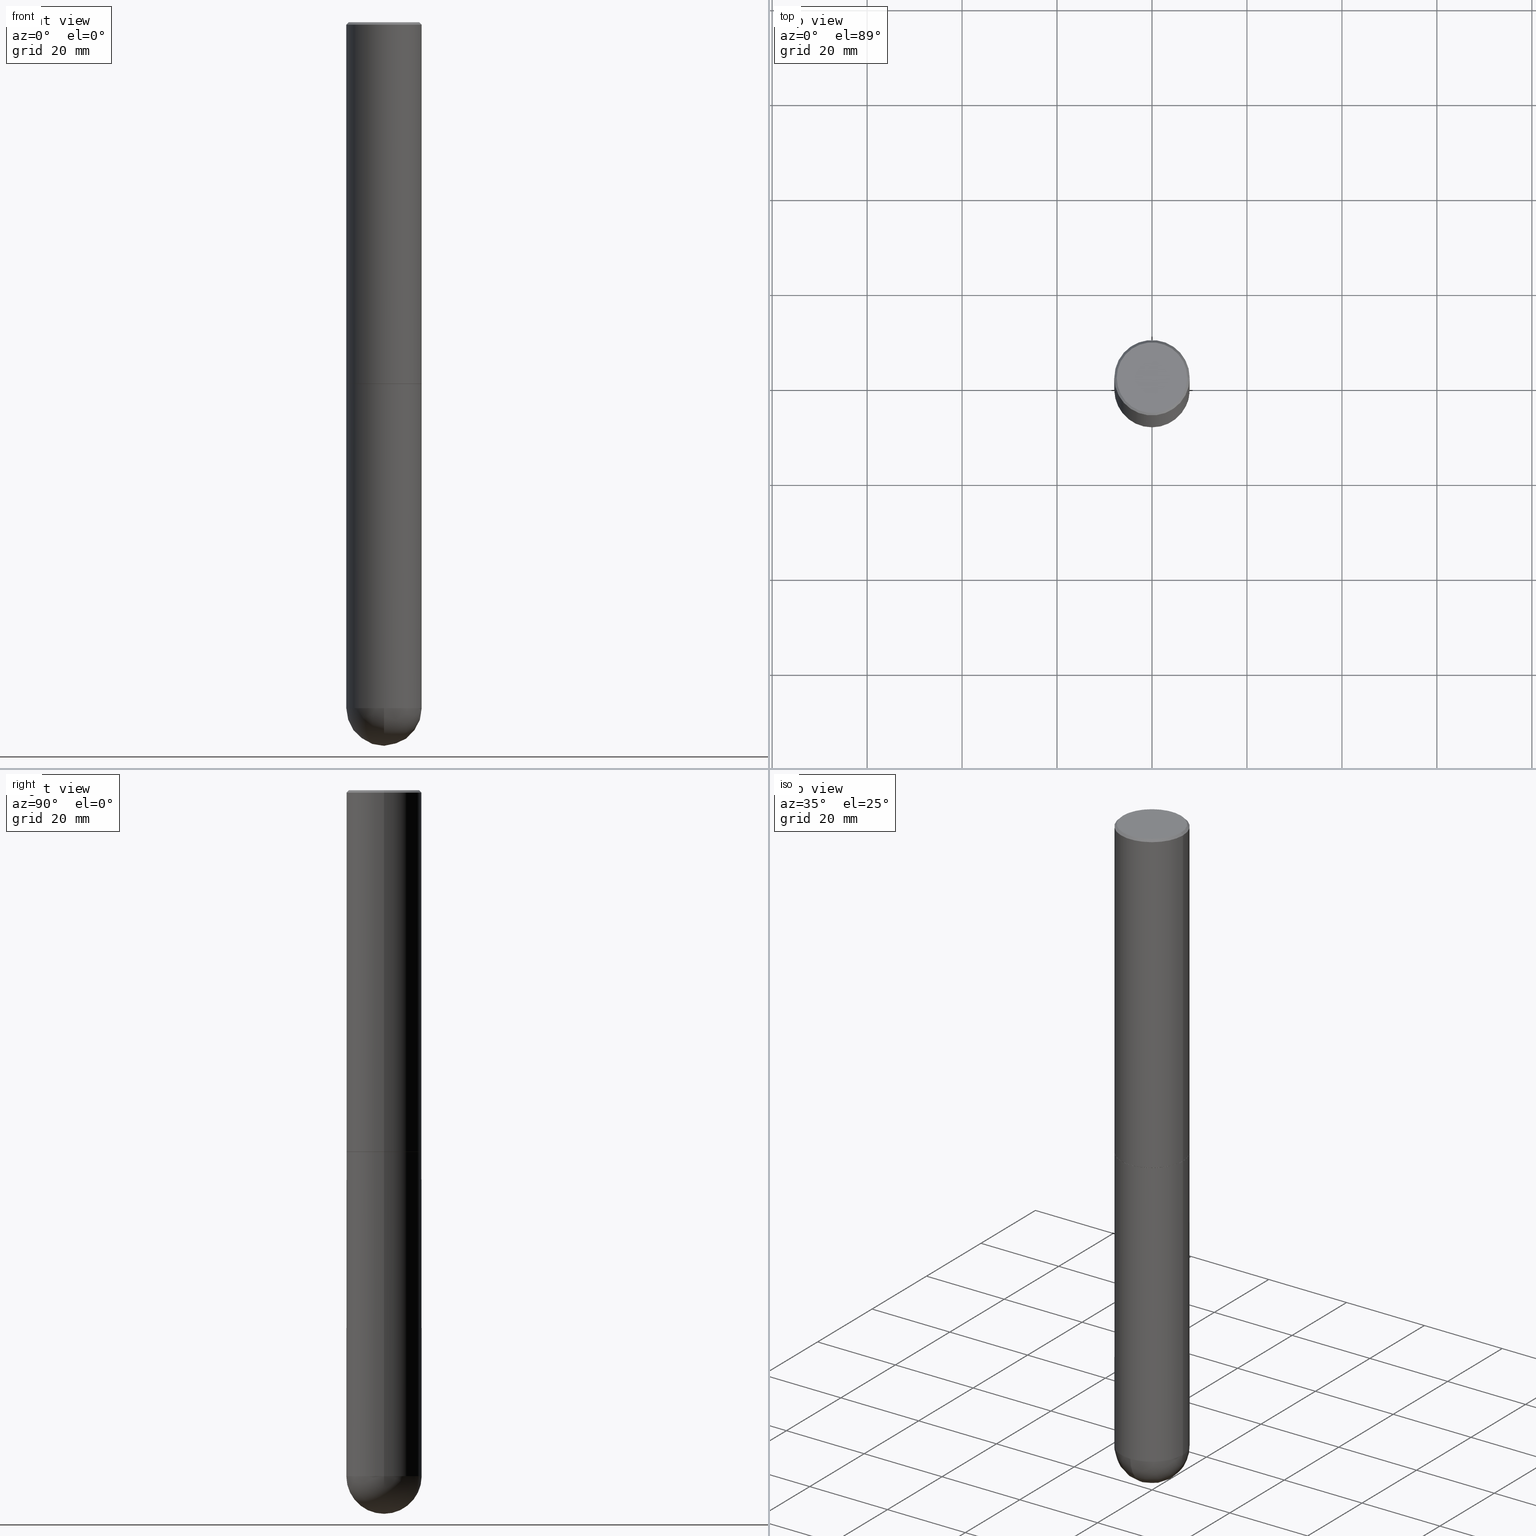
[diagram: canonical four-view strip — front | top / right | iso, engineering-drawing reading convention]
A machine part, canonical four-view strip (front | top / right | iso — engineering-drawing reading convention). The complete STEP part file that produces these views, byte-faithful:
ISO-10303-21;
HEADER;
FILE_DESCRIPTION (( 'STEP AP203' ),
    '1' );
FILE_NAME ('70463.STEP',
    '2024-04-10T12:33:41',
    ( '' ),
    ( '' ),
    'SwSTEP 2.0',
    'SolidWorks 2023',
    '' );
FILE_SCHEMA (( 'CONFIG_CONTROL_DESIGN' ));
ENDSEC;

DATA;
#1 = COORDINATED_UNIVERSAL_TIME_OFFSET ( 5, 0, .BEHIND. ) ;
#2 = CC_DESIGN_APPROVAL ( #224, ( #221 ) ) ;
#3 = AXIS2_PLACEMENT_3D ( 'NONE', #399, #255, #392 ) ;
#4 = AXIS2_PLACEMENT_3D ( 'NONE', #83, #47, #363 ) ;
#5 = CARTESIAN_POINT ( 'NONE',  ( -0.3125000000000003331, -3.049945031733409719E-15, -2.999000000000000554 ) ) ;
#6 = CARTESIAN_POINT ( 'NONE',  ( 0.000000000000000000, 0.000000000000000000, 0.000000000000000000 ) ) ;
#7 = LINE ( 'NONE', #339, #149 ) ;
#8 = EDGE_CURVE ( 'NONE', #54, #75, #279, .T. ) ;
#9 = PRODUCT_DEFINITION_SHAPE ( 'NONE', 'NONE',  #245 ) ;
#10 = APPROVAL_PERSON_ORGANIZATION ( #36, #199, #187 ) ;
#11 = CIRCLE ( 'NONE', #314, 0.3124999999999994449 ) ;
#12 = CARTESIAN_POINT ( 'NONE',  ( 0.000000000000000000, 0.000000000000000000, 0.000000000000000000 ) ) ;
#13 = CARTESIAN_POINT ( 'NONE',  ( -2.220446049250173452E-15, -0.3125000000000198175, -5.687500000000000888 ) ) ;
#14 = CC_DESIGN_PERSON_AND_ORGANIZATION_ASSIGNMENT ( #69, #192, ( #221 ) ) ;
#15 = CARTESIAN_POINT ( 'NONE',  ( 0.3125000000000000000, -1.265661985330639628E-14, -3.000000000000000444 ) ) ;
#16 = CONICAL_SURFACE ( 'NONE', #312, 0.3114999999999999991, 0.7853981633979947308 ) ;
#17 = ORIENTED_EDGE ( 'NONE', *, *, #19, .T. ) ;
#18 = AXIS2_PLACEMENT_3D ( 'NONE', #271, #124, #269 ) ;
#19 = EDGE_CURVE ( 'NONE', #21, #48, #32, .T. ) ;
#20 = ORIENTED_EDGE ( 'NONE', *, *, #229, .T. ) ;
#21 = VERTEX_POINT ( 'NONE', #134 ) ;
#22 = LINE ( 'NONE', #58, #127 ) ;
#23 = EDGE_LOOP ( 'NONE', ( #206, #404, #262, #164, #143 ) ) ;
#24 = DIRECTION ( 'NONE',  ( -1.000000000000000000, 6.982962677686265922E-15, -4.883557194083112901E-29 ) ) ;
#25 = EDGE_LOOP ( 'NONE', ( #27, #77, #203, #135 ) ) ;
#26 = DIMENSIONAL_EXPONENTS ( 1.000000000000000000, 0.000000000000000000, 0.000000000000000000, 0.000000000000000000, 0.000000000000000000, 0.000000000000000000, 0.000000000000000000 ) ;
#27 = ORIENTED_EDGE ( 'NONE', *, *, #29, .T. ) ;
#28 = FACE_OUTER_BOUND ( 'NONE', #25, .T. ) ;
#29 = EDGE_CURVE ( 'NONE', #394, #368, #109, .T. ) ;
#30 =( LENGTH_UNIT ( ) NAMED_UNIT ( * ) SI_UNIT ( $, .METRE. ) );
#31 = CYLINDRICAL_SURFACE ( 'NONE', #253, 0.3125000000000000000 ) ;
#32 = CIRCLE ( 'NONE', #286, 0.3124999999999994449 ) ;
#33 = EDGE_CURVE ( 'NONE', #368, #394, #391, .T. ) ;
#34 = EDGE_LOOP ( 'NONE', ( #171, #17, #173, #116 ) ) ;
#35 = CARTESIAN_POINT ( 'NONE',  ( -0.3114999999999999991, -8.255804940288501090E-15, -2.999999999999999556 ) ) ;
#36 = PERSON_AND_ORGANIZATION ( #212, #376 ) ;
#37 = MECHANICAL_CONTEXT ( 'NONE', #390, 'mechanical' ) ;
#38 = AXIS2_PLACEMENT_3D ( 'NONE', #331, #370, #342 ) ;
#39 = AXIS2_PLACEMENT_3D ( 'NONE', #346, #67, #208 ) ;
#40 = LOCAL_TIME ( 8, 33, 41.00000000000000000, #161 ) ;
#41 = CYLINDRICAL_SURFACE ( 'NONE', #57, 0.3125000000000000000 ) ;
#42 = DIRECTION ( 'NONE',  ( -2.445468806185136877E-29, 3.491481338843145188E-15, 1.000000000000000000 ) ) ;
#43 = EDGE_CURVE ( 'NONE', #368, #139, #395, .T. ) ;
#44 = PERSON_AND_ORGANIZATION_ROLE ( 'classification_officer' ) ;
#45 = CC_DESIGN_PERSON_AND_ORGANIZATION_ASSIGNMENT ( #277, #317, ( #245 ) ) ;
#46 = CONICAL_SURFACE ( 'NONE', #50, 0.3125000000000000000, 0.7853981633974471688 ) ;
#47 = DIRECTION ( 'NONE',  ( -2.445468806185136597E-29, 3.491481338843145583E-15, 1.000000000000000000 ) ) ;
#48 = VERTEX_POINT ( 'NONE', #13 ) ;
#49 = SECURITY_CLASSIFICATION ( '', '', #283 ) ;
#50 = AXIS2_PLACEMENT_3D ( 'NONE', #409, #309, #118 ) ;
#51 = VERTEX_POINT ( 'NONE', #128 ) ;
#52 = DIRECTION ( 'NONE',  ( -7.105427357601000281E-15, -1.000000000000000000, 0.000000000000000000 ) ) ;
#53 = CARTESIAN_POINT ( 'NONE',  ( 7.333960949749226429E-29, -1.047095253519059492E-14, -2.999000000000000554 ) ) ;
#54 = VERTEX_POINT ( 'NONE', #231 ) ;
#55 = AXIS2_PLACEMENT_3D ( 'NONE', #330, #101, #294 ) ;
#56 = COORDINATED_UNIVERSAL_TIME_OFFSET ( 5, 0, .BEHIND. ) ;
#57 = AXIS2_PLACEMENT_3D ( 'NONE', #247, #350, #214 ) ;
#58 = CARTESIAN_POINT ( 'NONE',  ( -0.3125000000000000000, 2.220446049250313081E-15, -1.537167215704658232E-29 ) ) ;
#59 = CYLINDRICAL_SURFACE ( 'NONE', #162, 0.3125000000000001665 ) ;
#60 = CARTESIAN_POINT ( 'NONE',  ( 0.3125000000000000000, -2.213735251080466911E-15, -0.02000000000000006981 ) ) ;
#61 = EDGE_CURVE ( 'NONE', #359, #48, #225, .T. ) ;
#62 = CARTESIAN_POINT ( 'NONE',  ( 2.042516583223233723E-15, 0.2925000000000001488, -1.104494285168578534E-15 ) ) ;
#63 = CALENDAR_DATE ( 2024, 10, 4 ) ;
#64 = APPROVAL_PERSON_ORGANIZATION ( #94, #224, #89 ) ;
#65 = LENGTH_MEASURE_WITH_UNIT ( LENGTH_MEASURE( 0.02539999999999999897 ), #30 );
#66 = EDGE_CURVE ( 'NONE', #51, #139, #243, .T. ) ;
#67 = DIRECTION ( 'NONE',  ( 2.438088387897960049E-29, -3.491481338843145188E-15, -1.000000000000000000 ) ) ;
#68 = AXIS2_PLACEMENT_3D ( 'NONE', #6, #123, #154 ) ;
#69 = PERSON_AND_ORGANIZATION ( #212, #376 ) ;
#70 = EDGE_CURVE ( 'NONE', #51, #372, #357, .T. ) ;
#71 = AXIS2_PLACEMENT_3D ( 'NONE', #266, #293, #241 ) ;
#72 = ORIENTED_EDGE ( 'NONE', *, *, #332, .F. ) ;
#73 = ORIENTED_EDGE ( 'NONE', *, *, #33, .T. ) ;
#74 = DIRECTION ( 'NONE',  ( -2.445468806185136597E-29, 3.491481338843145583E-15, 1.000000000000000000 ) ) ;
#75 = VERTEX_POINT ( 'NONE', #15 ) ;
#76 = AXIS2_PLACEMENT_3D ( 'NONE', #177, #79, #364 ) ;
#77 = ORIENTED_EDGE ( 'NONE', *, *, #43, .T. ) ;
#78 = CIRCLE ( 'NONE', #410, 0.3125000000000000000 ) ;
#79 = DIRECTION ( 'NONE',  ( -2.445468806185136597E-29, 3.491481338843145583E-15, 1.000000000000000000 ) ) ;
#80 = DIRECTION ( 'NONE',  ( -2.445468806185136597E-29, 3.491481338843145583E-15, 1.000000000000000000 ) ) ;
#81 = DIRECTION ( 'NONE',  ( 1.000000000000000000, -6.982962677686266711E-15, 4.876176775795935232E-29 ) ) ;
#82 = ADVANCED_FACE ( 'NONE', ( #131 ), #31, .T. ) ;
#83 = CARTESIAN_POINT ( 'NONE',  ( 7.336406418555408669E-29, -1.047444401652943478E-14, -2.999999999999999556 ) ) ;
#84 = EDGE_LOOP ( 'NONE', ( #400, #302 ) ) ;
#85 = AXIS2_PLACEMENT_3D ( 'NONE', #198, #24, #263 ) ;
#86 = CC_DESIGN_APPROVAL ( #100, ( #49 ) ) ;
#87 = DIRECTION ( 'NONE',  ( -2.445468806185136597E-29, 3.491481338843145583E-15, 1.000000000000000000 ) ) ;
#88 = PRODUCT_RELATED_PRODUCT_CATEGORY ( 'detail', '', ( #389 ) ) ;
#89 = APPROVAL_ROLE ( '' ) ;
#90 = DIRECTION ( 'NONE',  ( 1.000000000000000000, -6.982962677686269077E-15, 0.000000000000000000 ) ) ;
#91 = PERSON_AND_ORGANIZATION ( #212, #376 ) ;
#92 =( CONVERSION_BASED_UNIT ( 'INCH', #65 ) LENGTH_UNIT ( ) NAMED_UNIT ( #26 ) );
#93 = ADVANCED_FACE ( 'NONE', ( #281 ), #282, .F. ) ;
#94 = PERSON_AND_ORGANIZATION ( #212, #376 ) ;
#95 = FACE_OUTER_BOUND ( 'NONE', #84, .T. ) ;
#96 = APPROVAL_DATE_TIME ( #387, #224 ) ;
#97 = FACE_OUTER_BOUND ( 'NONE', #226, .T. ) ;
#98 = LOCAL_TIME ( 8, 33, 41.00000000000000000, #200 ) ;
#99 = AXIS2_PLACEMENT_3D ( 'NONE', #62, #218, #320 ) ;
#100 = APPROVAL ( #307, 'UNSPECIFIED' ) ;
#101 = DIRECTION ( 'NONE',  ( -2.445468806185136597E-29, 3.491481338843145583E-15, 1.000000000000000000 ) ) ;
#102 = DIRECTION ( 'NONE',  ( 1.000000000000000000, -6.982962677686265922E-15, 0.000000000000000000 ) ) ;
#103 = ORIENTED_EDGE ( 'NONE', *, *, #19, .F. ) ;
#104 = ORIENTED_EDGE ( 'NONE', *, *, #397, .F. ) ;
#105 = CARTESIAN_POINT ( 'NONE',  ( -0.2925000000000001488, 2.077431396611664583E-15, -1.664719871139304458E-16 ) ) ;
#106 = DATE_AND_TIME ( #169, #98 ) ;
#107 = DIRECTION ( 'NONE',  ( -1.000000000000000000, 7.105427357601001070E-15, -4.926315508542082329E-29 ) ) ;
#108 = ORIENTED_EDGE ( 'NONE', *, *, #322, .F. ) ;
#109 = CIRCLE ( 'NONE', #4, 0.3114999999999999991 ) ;
#110 = ORIENTED_EDGE ( 'NONE', *, *, #377, .T. ) ;
#111 = ORIENTED_EDGE ( 'NONE', *, *, #358, .F. ) ;
#112 = CARTESIAN_POINT ( 'NONE',  ( 1.390860383517796888E-28, -1.985780011467040063E-14, -5.687500000000001776 ) ) ;
#113 = LINE ( 'NONE', #240, #323 ) ;
#114 = CARTESIAN_POINT ( 'NONE',  ( 0.3125000000000000000, -1.734829790237687605E-14, -5.687500000000001776 ) ) ;
#115 = DIRECTION ( 'NONE',  ( 6.982962677686265922E-15, 1.000000000000000000, -3.496765431890262836E-15 ) ) ;
#116 = ORIENTED_EDGE ( 'NONE', *, *, #180, .F. ) ;
#117 = DIRECTION ( 'NONE',  ( -2.445468806185136597E-29, 3.491481338843145583E-15, 1.000000000000000000 ) ) ;
#118 = DIRECTION ( 'NONE',  ( -1.000000000000000000, 6.982962677686266711E-15, 0.000000000000000000 ) ) ;
#119 = MANIFOLD_SOLID_BREP ( 'Body-Move/Copy2[2]', #340 ) ;
#120 = EDGE_LOOP ( 'NONE', ( #265, #264, #325, #152 ) ) ;
#121 = CALENDAR_DATE ( 2024, 10, 4 ) ;
#122 = MANIFOLD_SOLID_BREP ( 'Body-Move/Copy2[1]', #176 ) ;
#123 = DIRECTION ( 'NONE',  ( 0.000000000000000000, 0.000000000000000000, 1.000000000000000000 ) ) ;
#124 = DIRECTION ( 'NONE',  ( -2.445468806185136597E-29, 3.491481338843145583E-15, 1.000000000000000000 ) ) ;
#125 = CARTESIAN_POINT ( 'NONE',  ( 1.390860383517796888E-28, -1.985780011467040063E-14, -5.687500000000001776 ) ) ;
#126 = EDGE_CURVE ( 'NONE', #394, #51, #7, .T. ) ;
#127 = VECTOR ( 'NONE', #168, 39.37007874015748143 ) ;
#128 = CARTESIAN_POINT ( 'NONE',  ( 0.3125000000000003331, -1.265312837196755485E-14, -2.999000000000000554 ) ) ;
#129 = ADVANCED_FACE ( 'NONE', ( #95 ), #385, .F. ) ;
#130 = CC_DESIGN_SECURITY_CLASSIFICATION ( #49, ( #221 ) ) ;
#131 = FACE_OUTER_BOUND ( 'NONE', #140, .T. ) ;
#132 = AXIS2_PLACEMENT_3D ( 'NONE', #297, #201, #102 ) ;
#133 = ORIENTED_EDGE ( 'NONE', *, *, #322, .T. ) ;
#134 = CARTESIAN_POINT ( 'NONE',  ( 1.435505503246536289E-28, -2.140393529496224958E-14, -6.000000000000000888 ) ) ;
#135 = ORIENTED_EDGE ( 'NONE', *, *, #126, .F. ) ;
#136 = PLANE ( 'NONE',  #38 ) ;
#137 = EDGE_CURVE ( 'NONE', #372, #334, #223, .T. ) ;
#138 = APPROVAL_DATE_TIME ( #106, #100 ) ;
#139 = VERTEX_POINT ( 'NONE', #5 ) ;
#140 = EDGE_LOOP ( 'NONE', ( #401, #291, #133, #238, #369 ) ) ;
#141 = DIRECTION ( 'NONE',  ( 1.000000000000000000, -6.982962677686268288E-15, 0.000000000000000000 ) ) ;
#142 = SHAPE_DEFINITION_REPRESENTATION ( #9, #386 ) ;
#143 = ORIENTED_EDGE ( 'NONE', *, *, #170, .T. ) ;
#144 = DIRECTION ( 'NONE',  ( -2.445468806185136597E-29, 3.491481338843145583E-15, 1.000000000000000000 ) ) ;
#145 = APPROVAL_ROLE ( '' ) ;
#146 = DIRECTION ( 'NONE',  ( 1.000000000000000000, -6.982962677686262766E-15, 0.000000000000000000 ) ) ;
#147 = FACE_OUTER_BOUND ( 'NONE', #367, .T. ) ;
#148 = DIRECTION ( 'NONE',  ( -2.445468806185136877E-29, 3.491481338843145188E-15, 1.000000000000000000 ) ) ;
#149 = VECTOR ( 'NONE', #189, 39.37007874015748143 ) ;
#150 = EDGE_LOOP ( 'NONE', ( #196, #327, #276, #166 ) ) ;
#151 = CARTESIAN_POINT ( 'NONE',  ( -0.3125000000000000000, 2.112346210000095443E-15, -0.02000000000000006981 ) ) ;
#152 = ORIENTED_EDGE ( 'NONE', *, *, #70, .F. ) ;
#153 = EDGE_CURVE ( 'NONE', #360, #75, #353, .T. ) ;
#154 = DIRECTION ( 'NONE',  ( 1.000000000000000000, 0.000000000000000000, 0.000000000000000000 ) ) ;
#155 = DIRECTION ( 'NONE',  ( 1.000000000000000000, -6.982962677686266711E-15, 0.000000000000000000 ) ) ;
#156 = AXIS2_PLACEMENT_3D ( 'NONE', #237, #80, #258 ) ;
#157 = AXIS2_PLACEMENT_3D ( 'NONE', #373, #328, #306 ) ;
#158 = UNCERTAINTY_MEASURE_WITH_UNIT (LENGTH_MEASURE( 1.000000000000000082E-05 ), #92, 'distance_accuracy_value', 'NONE');
#159 =( NAMED_UNIT ( * ) SI_UNIT ( $, .STERADIAN. ) SOLID_ANGLE_UNIT ( ) );
#160 = DIRECTION ( 'NONE',  ( -2.445468806185136597E-29, 3.491481338843145583E-15, 1.000000000000000000 ) ) ;
#161 = COORDINATED_UNIVERSAL_TIME_OFFSET ( 5, 0, .BEHIND. ) ;
#162 = AXIS2_PLACEMENT_3D ( 'NONE', #12, #144, #405 ) ;
#163 = CARTESIAN_POINT ( 'NONE',  ( 0.3125000000000001665, -2.182175836776959530E-15, 1.523805242436230636E-29 ) ) ;
#164 = ORIENTED_EDGE ( 'NONE', *, *, #153, .F. ) ;
#165 = LOCAL_TIME ( 8, 33, 41.00000000000000000, #217 ) ;
#166 = ORIENTED_EDGE ( 'NONE', *, *, #366, .F. ) ;
#167 = AXIS2_PLACEMENT_3D ( 'NONE', #252, #379, #250 ) ;
#168 = DIRECTION ( 'NONE',  ( -2.445468806185136877E-29, 3.491481338843145188E-15, 1.000000000000000000 ) ) ;
#169 = CALENDAR_DATE ( 2024, 10, 4 ) ;
#170 = EDGE_CURVE ( 'NONE', #360, #396, #375, .T. ) ;
#171 = ORIENTED_EDGE ( 'NONE', *, *, #229, .F. ) ;
#172 = SPHERICAL_SURFACE ( 'NONE', #85, 0.3124999999999994449 ) ;
#173 = ORIENTED_EDGE ( 'NONE', *, *, #61, .F. ) ;
#174 = VERTEX_POINT ( 'NONE', #181 ) ;
#175 = DIRECTION ( 'NONE',  ( -2.445468806185136597E-29, 3.491481338843145583E-15, 1.000000000000000000 ) ) ;
#176 = CLOSED_SHELL ( 'NONE', ( #406, #345, #219, #93, #82 ) ) ;
#177 = CARTESIAN_POINT ( 'NONE',  ( 7.336406418555408669E-29, -1.047444401652943478E-14, -2.999999999999999556 ) ) ;
#178 = FACE_OUTER_BOUND ( 'NONE', #197, .T. ) ;
#179 = CYLINDRICAL_SURFACE ( 'NONE', #234, 0.3125000000000001665 ) ;
#180 = EDGE_CURVE ( 'NONE', #396, #359, #274, .T. ) ;
#181 = CARTESIAN_POINT ( 'NONE',  ( 0.2925000000000001488, -2.110215457714320720E-15, -1.664719871139015045E-16 ) ) ;
#182 = EDGE_LOOP ( 'NONE', ( #341, #204 ) ) ;
#183 = CIRCLE ( 'NONE', #209, 0.3125000000000000000 ) ;
#184 = DATE_AND_TIME ( #63, #165 ) ;
#185 = AXIS2_PLACEMENT_3D ( 'NONE', #222, #311, #155 ) ;
#186 = ADVANCED_FACE ( 'NONE', ( #97 ), #46, .T. ) ;
#187 = APPROVAL_ROLE ( '' ) ;
#188 =( NAMED_UNIT ( * ) PLANE_ANGLE_UNIT ( ) SI_UNIT ( $, .RADIAN. ) );
#189 = DIRECTION ( 'NONE',  ( 0.7071067811869339303, -2.468850131086304311E-15, 0.7071067811861611041 ) ) ;
#190 = AXIS2_PLACEMENT_3D ( 'NONE', #125, #160, #146 ) ;
#191 = CC_DESIGN_APPROVAL ( #199, ( #245 ) ) ;
#192 = PERSON_AND_ORGANIZATION_ROLE ( 'design_supplier' ) ;
#193 = ADVANCED_FACE ( 'NONE', ( #178 ), #248, .T. ) ;
#194 = CC_DESIGN_DATE_AND_TIME_ASSIGNMENT ( #304, #402, ( #49 ) ) ;
#195 = CONICAL_SURFACE ( 'NONE', #76, 0.3114999999999999991, 0.7853981633979947308 ) ;
#196 = ORIENTED_EDGE ( 'NONE', *, *, #254, .F. ) ;
#197 = EDGE_LOOP ( 'NONE', ( #72, #110, #228, #104 ) ) ;
#198 = CARTESIAN_POINT ( 'NONE',  ( 1.357748405726408151E-28, -2.033198248281044620E-14, -5.687500000000000888 ) ) ;
#199 = APPROVAL ( #348, 'UNSPECIFIED' ) ;
#200 = COORDINATED_UNIVERSAL_TIME_OFFSET ( 5, 0, .BEHIND. ) ;
#201 = DIRECTION ( 'NONE',  ( -2.445468806185136597E-29, 3.491481338843145583E-15, 1.000000000000000000 ) ) ;
#202 = VECTOR ( 'NONE', #42, 39.37007874015748143 ) ;
#203 = ORIENTED_EDGE ( 'NONE', *, *, #66, .F. ) ;
#204 = ORIENTED_EDGE ( 'NONE', *, *, #8, .T. ) ;
#205 = FACE_OUTER_BOUND ( 'NONE', #324, .T. ) ;
#206 = ORIENTED_EDGE ( 'NONE', *, *, #180, .T. ) ;
#207 = DIRECTION ( 'NONE',  ( 1.000000000000000000, -6.982962677686265922E-15, 0.000000000000000000 ) ) ;
#208 = DIRECTION ( 'NONE',  ( -1.000000000000000000, 6.982962677686265922E-15, -4.876176775795935793E-29 ) ) ;
#209 = AXIS2_PLACEMENT_3D ( 'NONE', #112, #117, #337 ) ;
#210 = VECTOR ( 'NONE', #288, 39.37007874015748143 ) ;
#211 = SPHERICAL_SURFACE ( 'NONE', #329, 0.3124999999999994449 ) ;
#212 = PERSON ( 'UNSPECIFIED', 'UNSPECIFIED', 'UNSPECIFIED', ('UNSPECIFIED'), ('UNSPECIFIED'), ('UNSPECIFIED') ) ;
#213 = CARTESIAN_POINT ( 'NONE',  ( 1.357748405726408151E-28, -2.033198248281044620E-14, -5.687500000000000888 ) ) ;
#214 = DIRECTION ( 'NONE',  ( 1.000000000000000000, -6.982962677686266711E-15, 4.876176775795936353E-29 ) ) ;
#215 = EDGE_CURVE ( 'NONE', #75, #54, #78, .T. ) ;
#216 = FACE_OUTER_BOUND ( 'NONE', #23, .T. ) ;
#217 = COORDINATED_UNIVERSAL_TIME_OFFSET ( 5, 0, .BEHIND. ) ;
#218 = DIRECTION ( 'NONE',  ( 2.438088387897960049E-29, -3.491481338843145188E-15, -1.000000000000000000 ) ) ;
#219 = ADVANCED_FACE ( 'NONE', ( #356 ), #211, .T. ) ;
#220 = PERSON_AND_ORGANIZATION ( #212, #376 ) ;
#221 = PRODUCT_DEFINITION_FORMATION_WITH_SPECIFIED_SOURCE ( 'ANY', '', #389, .NOT_KNOWN. ) ;
#222 = CARTESIAN_POINT ( 'NONE',  ( 4.890937612370289799E-31, -6.982962677686315028E-17, -0.02000000000000006981 ) ) ;
#223 = CIRCLE ( 'NONE', #185, 0.3125000000000000000 ) ;
#224 = APPROVAL ( #378, 'UNSPECIFIED' ) ;
#225 = CIRCLE ( 'NONE', #3, 0.3125000000000000000 ) ;
#226 = EDGE_LOOP ( 'NONE', ( #333, #235, #298, #336 ) ) ;
#227 = CARTESIAN_POINT ( 'NONE',  ( -0.3114999999999999991, -8.261103394636723492E-15, -2.999999999999999556 ) ) ;
#228 = ORIENTED_EDGE ( 'NONE', *, *, #137, .T. ) ;
#229 = EDGE_CURVE ( 'NONE', #21, #396, #11, .T. ) ;
#230 = PERSON_AND_ORGANIZATION ( #212, #376 ) ;
#231 = CARTESIAN_POINT ( 'NONE',  ( -0.3125000000000000000, -1.294567601634960462E-14, -3.000000000000000444 ) ) ;
#232 = ORIENTED_EDGE ( 'NONE', *, *, #43, .F. ) ;
#233 = CARTESIAN_POINT ( 'NONE',  ( 4.071020515907357082E-45, -5.812338364483744108E-31, -1.664719871139160491E-16 ) ) ;
#234 = AXIS2_PLACEMENT_3D ( 'NONE', #236, #74, #81 ) ;
#235 = ORIENTED_EDGE ( 'NONE', *, *, #290, .F. ) ;
#236 = CARTESIAN_POINT ( 'NONE',  ( 0.000000000000000000, 0.000000000000000000, 0.000000000000000000 ) ) ;
#237 = CARTESIAN_POINT ( 'NONE',  ( 7.336406418555409790E-29, -1.047444401652943635E-14, -3.000000000000000444 ) ) ;
#238 = ORIENTED_EDGE ( 'NONE', *, *, #153, .T. ) ;
#239 = CARTESIAN_POINT ( 'NONE',  ( -0.3125000000000000000, -1.294567601634960462E-14, -5.687500000000001776 ) ) ;
#240 = CARTESIAN_POINT ( 'NONE',  ( -0.3125000000000001665, 2.220446049250314264E-15, -1.537167215704658792E-29 ) ) ;
#241 = DIRECTION ( 'NONE',  ( 1.000000000000000000, -6.982962677686266711E-15, 4.873475059489873974E-29 ) ) ;
#242 = AXIS2_PLACEMENT_3D ( 'NONE', #53, #175, #141 ) ;
#243 = CIRCLE ( 'NONE', #55, 0.3125000000000003331 ) ;
#244 = CARTESIAN_POINT ( 'NONE',  ( 0.3125000000000000000, -2.182175836776958347E-15, 1.523805242436230075E-29 ) ) ;
#245 = PRODUCT_DEFINITION ( 'UNKNOWN', '', #221, #246 ) ;
#246 = DESIGN_CONTEXT ( 'detailed design', #347, 'design' ) ;
#247 = CARTESIAN_POINT ( 'NONE',  ( 0.000000000000000000, 0.000000000000000000, 0.000000000000000000 ) ) ;
#248 = CONICAL_SURFACE ( 'NONE', #167, 0.3125000000000000000, 0.7853981633974471688 ) ;
#249 = DATE_AND_TIME ( #121, #257 ) ;
#250 = DIRECTION ( 'NONE',  ( -1.000000000000000000, 6.982962677686266711E-15, 0.000000000000000000 ) ) ;
#251 = CALENDAR_DATE ( 2024, 10, 4 ) ;
#252 = CARTESIAN_POINT ( 'NONE',  ( 4.890937612370289799E-31, -6.982962677686315028E-17, -0.02000000000000006981 ) ) ;
#253 = AXIS2_PLACEMENT_3D ( 'NONE', #374, #87, #371 ) ;
#254 = EDGE_CURVE ( 'NONE', #139, #334, #113, .T. ) ;
#255 = DIRECTION ( 'NONE',  ( -2.445468806185136597E-29, 3.491481338843145583E-15, 1.000000000000000000 ) ) ;
#256 = AXIS2_PLACEMENT_3D ( 'NONE', #233, #296, #270 ) ;
#257 = LOCAL_TIME ( 8, 33, 41.00000000000000000, #1 ) ;
#258 = DIRECTION ( 'NONE',  ( 1.000000000000000000, -6.982962677686269077E-15, 0.000000000000000000 ) ) ;
#259 = EDGE_LOOP ( 'NONE', ( #103, #20, #295, #108 ) ) ;
#260 = CARTESIAN_POINT ( 'NONE',  ( 1.357748405726408151E-28, -2.033198248281044620E-14, -5.687500000000000888 ) ) ;
#261 = ADVANCED_FACE ( 'NONE', ( #343 ), #59, .T. ) ;
#262 = ORIENTED_EDGE ( 'NONE', *, *, #215, .F. ) ;
#263 = DIRECTION ( 'NONE',  ( 6.982962677686265922E-15, 1.000000000000000000, -3.496765431890262836E-15 ) ) ;
#264 = ORIENTED_EDGE ( 'NONE', *, *, #254, .T. ) ;
#265 = ORIENTED_EDGE ( 'NONE', *, *, #66, .T. ) ;
#266 = CARTESIAN_POINT ( 'NONE',  ( 4.071020515907357082E-45, -5.812338364483744108E-31, -1.664719871139160491E-16 ) ) ;
#267 = DIRECTION ( 'NONE',  ( -1.000000000000000000, 6.982962677686265922E-15, -4.883557194083112901E-29 ) ) ;
#268 = CC_DESIGN_PERSON_AND_ORGANIZATION_ASSIGNMENT ( #220, #354, ( #221 ) ) ;
#269 = DIRECTION ( 'NONE',  ( 1.000000000000000000, -6.982962677686262766E-15, 0.000000000000000000 ) ) ;
#270 = DIRECTION ( 'NONE',  ( 1.000000000000000000, -6.982962677686266711E-15, 4.873475059489873974E-29 ) ) ;
#271 = CARTESIAN_POINT ( 'NONE',  ( 1.390860383517796888E-28, -1.985780011467040063E-14, -5.687500000000001776 ) ) ;
#272 = CIRCLE ( 'NONE', #242, 0.3125000000000003331 ) ;
#273 = CC_DESIGN_PERSON_AND_ORGANIZATION_ASSIGNMENT ( #91, #316, ( #389 ) ) ;
#274 = CIRCLE ( 'NONE', #18, 0.3125000000000000000 ) ;
#275 = LINE ( 'NONE', #151, #278 ) ;
#276 = ORIENTED_EDGE ( 'NONE', *, *, #70, .T. ) ;
#277 = PERSON_AND_ORGANIZATION ( #212, #376 ) ;
#278 = VECTOR ( 'NONE', #412, 39.37007874015748143 ) ;
#279 = CIRCLE ( 'NONE', #156, 0.3125000000000000000 ) ;
#280 = APPROVAL_PERSON_ORGANIZATION ( #230, #100, #145 ) ;
#281 = FACE_OUTER_BOUND ( 'NONE', #182, .T. ) ;
#282 = PLANE ( 'NONE',  #39 ) ;
#283 = SECURITY_CLASSIFICATION_LEVEL ( 'unclassified' ) ;
#284 = ADVANCED_FACE ( 'NONE', ( #28 ), #195, .T. ) ;
#285 =( GEOMETRIC_REPRESENTATION_CONTEXT ( 3 ) GLOBAL_UNCERTAINTY_ASSIGNED_CONTEXT ( ( #158 ) ) GLOBAL_UNIT_ASSIGNED_CONTEXT ( ( #92, #188, #159 ) ) REPRESENTATION_CONTEXT ( 'NONE', 'WORKASPACE' ) );
#286 = AXIS2_PLACEMENT_3D ( 'NONE', #260, #107, #52 ) ;
#287 = DIRECTION ( 'NONE',  ( -0.7071067811869339303, 7.493145998871750444E-15, 0.7071067811861611041 ) ) ;
#288 = DIRECTION ( 'NONE',  ( -2.445468806185136877E-29, 3.491481338843145188E-15, 1.000000000000000000 ) ) ;
#289 = ORIENTED_EDGE ( 'NONE', *, *, #29, .F. ) ;
#290 = EDGE_CURVE ( 'NONE', #313, #174, #383, .T. ) ;
#291 = ORIENTED_EDGE ( 'NONE', *, *, #61, .T. ) ;
#292 = ORIENTED_EDGE ( 'NONE', *, *, #33, .F. ) ;
#293 = DIRECTION ( 'NONE',  ( -2.445468806185136597E-29, 3.491481338843145583E-15, 1.000000000000000000 ) ) ;
#294 = DIRECTION ( 'NONE',  ( 1.000000000000000000, -6.982962677686268288E-15, 0.000000000000000000 ) ) ;
#295 = ORIENTED_EDGE ( 'NONE', *, *, #170, .F. ) ;
#296 = DIRECTION ( 'NONE',  ( -2.445468806185136597E-29, 3.491481338843145583E-15, 1.000000000000000000 ) ) ;
#297 = CARTESIAN_POINT ( 'NONE',  ( 7.336406418555408669E-29, -1.047444401652943478E-14, -2.999999999999999556 ) ) ;
#298 = ORIENTED_EDGE ( 'NONE', *, *, #397, .T. ) ;
#299 = ADVANCED_FACE ( 'NONE', ( #147 ), #136, .F. ) ;
#300 = FACE_OUTER_BOUND ( 'NONE', #34, .T. ) ;
#301 = DIRECTION ( 'NONE',  ( 1.000000000000000000, -6.982962677686265922E-15, 4.883557194083112340E-29 ) ) ;
#302 = ORIENTED_EDGE ( 'NONE', *, *, #332, .T. ) ;
#303 = FACE_OUTER_BOUND ( 'NONE', #150, .T. ) ;
#304 = DATE_AND_TIME ( #362, #338 ) ;
#305 = DIRECTION ( 'NONE',  ( -2.445468806185136597E-29, 3.491481338843145583E-15, 1.000000000000000000 ) ) ;
#306 = DIRECTION ( 'NONE',  ( 1.000000000000000000, -6.982962677686266711E-15, 0.000000000000000000 ) ) ;
#307 = APPROVAL_STATUS ( 'not_yet_approved' ) ;
#308 = ADVANCED_FACE ( 'NONE', ( #205 ), #16, .T. ) ;
#309 = DIRECTION ( 'NONE',  ( 2.445468806185136597E-29, -3.491481338843145583E-15, -1.000000000000000000 ) ) ;
#310 = CARTESIAN_POINT ( 'NONE',  ( 0.3114999999999999991, -1.264963689062870711E-14, -2.999999999999999556 ) ) ;
#311 = DIRECTION ( 'NONE',  ( -2.445468806185136597E-29, 3.491481338843145583E-15, 1.000000000000000000 ) ) ;
#312 = AXIS2_PLACEMENT_3D ( 'NONE', #398, #335, #207 ) ;
#313 = VERTEX_POINT ( 'NONE', #105 ) ;
#314 = AXIS2_PLACEMENT_3D ( 'NONE', #213, #301, #403 ) ;
#315 = APPROVAL_DATE_TIME ( #184, #199 ) ;
#316 = PERSON_AND_ORGANIZATION_ROLE ( 'design_owner' ) ;
#317 = PERSON_AND_ORGANIZATION_ROLE ( 'creator' ) ;
#318 = DIRECTION ( 'NONE',  ( 0.7071067811865466846, -7.319954787623252890E-15, -0.7071067811865483499 ) ) ;
#319 = CIRCLE ( 'NONE', #256, 0.2925000000000001488 ) ;
#320 = DIRECTION ( 'NONE',  ( -1.000000000000000000, 6.982962677686265922E-15, -4.876176775795935793E-29 ) ) ;
#321 = PERSON_AND_ORGANIZATION ( #212, #376 ) ;
#322 = EDGE_CURVE ( 'NONE', #48, #360, #183, .T. ) ;
#323 = VECTOR ( 'NONE', #148, 39.37007874015748143 ) ;
#324 = EDGE_LOOP ( 'NONE', ( #232, #73, #380, #111 ) ) ;
#325 = ORIENTED_EDGE ( 'NONE', *, *, #137, .F. ) ;
#326 = EDGE_CURVE ( 'NONE', #359, #54, #22, .T. ) ;
#327 = ORIENTED_EDGE ( 'NONE', *, *, #358, .T. ) ;
#328 = DIRECTION ( 'NONE',  ( -2.445468806185136597E-29, 3.491481338843145583E-15, 1.000000000000000000 ) ) ;
#329 = AXIS2_PLACEMENT_3D ( 'NONE', #407, #267, #115 ) ;
#330 = CARTESIAN_POINT ( 'NONE',  ( 7.333960949749226429E-29, -1.047095253519059492E-14, -2.999000000000000554 ) ) ;
#331 = CARTESIAN_POINT ( 'NONE',  ( 7.336406418555408669E-29, -1.047444401652943478E-14, -2.999999999999999556 ) ) ;
#332 = EDGE_CURVE ( 'NONE', #174, #313, #319, .T. ) ;
#333 = ORIENTED_EDGE ( 'NONE', *, *, #377, .F. ) ;
#334 = VERTEX_POINT ( 'NONE', #361 ) ;
#335 = DIRECTION ( 'NONE',  ( -2.445468806185136597E-29, 3.491481338843145583E-15, 1.000000000000000000 ) ) ;
#336 = ORIENTED_EDGE ( 'NONE', *, *, #366, .T. ) ;
#337 = DIRECTION ( 'NONE',  ( 1.000000000000000000, -6.982962677686262766E-15, 0.000000000000000000 ) ) ;
#338 = LOCAL_TIME ( 8, 33, 41.00000000000000000, #56 ) ;
#339 = CARTESIAN_POINT ( 'NONE',  ( 0.3114999999999999991, -1.264963689062870711E-14, -2.999999999999999556 ) ) ;
#340 = CLOSED_SHELL ( 'NONE', ( #284, #261, #193, #186, #355, #308, #299, #129 ) ) ;
#341 = ORIENTED_EDGE ( 'NONE', *, *, #215, .T. ) ;
#342 = DIRECTION ( 'NONE',  ( 1.000000000000000000, -6.982962677686265922E-15, 4.876176775795935793E-29 ) ) ;
#343 = FACE_OUTER_BOUND ( 'NONE', #120, .T. ) ;
#344 = CARTESIAN_POINT ( 'NONE',  ( 0.3125000000000000000, -2.213735251080466911E-15, -0.02000000000000006981 ) ) ;
#345 = ADVANCED_FACE ( 'NONE', ( #300 ), #172, .T. ) ;
#346 = CARTESIAN_POINT ( 'NONE',  ( 2.182175836777031317E-15, 0.3124999999999895639, -3.000000000000001332 ) ) ;
#347 = APPLICATION_CONTEXT ( 'configuration controlled 3d designs of mechanical parts and assemblies' ) ;
#348 = APPROVAL_STATUS ( 'not_yet_approved' ) ;
#349 = CARTESIAN_POINT ( 'NONE',  ( 2.182175836777093637E-15, 0.3124999999999796829, -5.687500000000003553 ) ) ;
#350 = DIRECTION ( 'NONE',  ( -2.445468806185136597E-29, 3.491481338843145583E-15, 1.000000000000000000 ) ) ;
#351 = CC_DESIGN_PERSON_AND_ORGANIZATION_ASSIGNMENT ( #321, #44, ( #49 ) ) ;
#352 = LINE ( 'NONE', #344, #365 ) ;
#353 = LINE ( 'NONE', #244, #202 ) ;
#354 = PERSON_AND_ORGANIZATION_ROLE ( 'creator' ) ;
#355 = ADVANCED_FACE ( 'NONE', ( #303 ), #179, .T. ) ;
#356 = FACE_OUTER_BOUND ( 'NONE', #259, .T. ) ;
#357 = LINE ( 'NONE', #163, #210 ) ;
#358 = EDGE_CURVE ( 'NONE', #139, #51, #272, .T. ) ;
#359 = VERTEX_POINT ( 'NONE', #239 ) ;
#360 = VERTEX_POINT ( 'NONE', #114 ) ;
#361 = CARTESIAN_POINT ( 'NONE',  ( -0.3125000000000000000, 2.112346210000095443E-15, -0.02000000000000006981 ) ) ;
#362 = CALENDAR_DATE ( 2024, 10, 4 ) ;
#363 = DIRECTION ( 'NONE',  ( 1.000000000000000000, -6.982962677686265922E-15, 0.000000000000000000 ) ) ;
#364 = DIRECTION ( 'NONE',  ( 1.000000000000000000, -6.982962677686265922E-15, 0.000000000000000000 ) ) ;
#365 = VECTOR ( 'NONE', #318, 39.37007874015748143 ) ;
#366 = EDGE_CURVE ( 'NONE', #334, #372, #408, .T. ) ;
#367 = EDGE_LOOP ( 'NONE', ( #289, #292 ) ) ;
#368 = VERTEX_POINT ( 'NONE', #35 ) ;
#369 = ORIENTED_EDGE ( 'NONE', *, *, #8, .F. ) ;
#370 = DIRECTION ( 'NONE',  ( -2.438088387897960049E-29, 3.491481338843145188E-15, 1.000000000000000000 ) ) ;
#371 = DIRECTION ( 'NONE',  ( 1.000000000000000000, -6.982962677686266711E-15, 4.876176775795936353E-29 ) ) ;
#372 = VERTEX_POINT ( 'NONE', #60 ) ;
#373 = CARTESIAN_POINT ( 'NONE',  ( 4.890937612370289799E-31, -6.982962677686315028E-17, -0.02000000000000006981 ) ) ;
#374 = CARTESIAN_POINT ( 'NONE',  ( 0.000000000000000000, 0.000000000000000000, 0.000000000000000000 ) ) ;
#375 = CIRCLE ( 'NONE', #190, 0.3125000000000000000 ) ;
#376 = ORGANIZATION ( 'UNSPECIFIED', 'UNSPECIFIED', '' ) ;
#377 = EDGE_CURVE ( 'NONE', #174, #372, #352, .T. ) ;
#378 = APPROVAL_STATUS ( 'not_yet_approved' ) ;
#379 = DIRECTION ( 'NONE',  ( 2.445468806185136597E-29, -3.491481338843145583E-15, -1.000000000000000000 ) ) ;
#380 = ORIENTED_EDGE ( 'NONE', *, *, #126, .T. ) ;
#381 = APPLICATION_PROTOCOL_DEFINITION ( 'international standard', 'config_control_design', 1994, #347 ) ;
#382 = CC_DESIGN_DATE_AND_TIME_ASSIGNMENT ( #249, #384, ( #245 ) ) ;
#383 = CIRCLE ( 'NONE', #71, 0.2925000000000001488 ) ;
#384 = DATE_TIME_ROLE ( 'creation_date' ) ;
#385 = PLANE ( 'NONE',  #99 ) ;
#386 = ADVANCED_BREP_SHAPE_REPRESENTATION ( '70463', ( #122, #119, #68 ), #285 ) ;
#387 = DATE_AND_TIME ( #251, #40 ) ;
#388 = CARTESIAN_POINT ( 'NONE',  ( 7.336406418555409790E-29, -1.047444401652943635E-14, -3.000000000000000444 ) ) ;
#389 = PRODUCT ( '70463', '70463', '', ( #37 ) ) ;
#390 = APPLICATION_CONTEXT ( 'configuration controlled 3d designs of mechanical parts and assemblies' ) ;
#391 = CIRCLE ( 'NONE', #132, 0.3114999999999999991 ) ;
#392 = DIRECTION ( 'NONE',  ( 1.000000000000000000, -6.982962677686262766E-15, 0.000000000000000000 ) ) ;
#393 = VECTOR ( 'NONE', #287, 39.37007874015748143 ) ;
#394 = VERTEX_POINT ( 'NONE', #310 ) ;
#395 = LINE ( 'NONE', #227, #393 ) ;
#396 = VERTEX_POINT ( 'NONE', #349 ) ;
#397 = EDGE_CURVE ( 'NONE', #313, #334, #275, .T. ) ;
#398 = CARTESIAN_POINT ( 'NONE',  ( 7.336406418555408669E-29, -1.047444401652943478E-14, -2.999999999999999556 ) ) ;
#399 = CARTESIAN_POINT ( 'NONE',  ( 1.390860383517796888E-28, -1.985780011467040063E-14, -5.687500000000001776 ) ) ;
#400 = ORIENTED_EDGE ( 'NONE', *, *, #290, .T. ) ;
#401 = ORIENTED_EDGE ( 'NONE', *, *, #326, .F. ) ;
#402 = DATE_TIME_ROLE ( 'classification_date' ) ;
#403 = DIRECTION ( 'NONE',  ( 6.982962677686266711E-15, 1.000000000000000000, 0.000000000000000000 ) ) ;
#404 = ORIENTED_EDGE ( 'NONE', *, *, #326, .T. ) ;
#405 = DIRECTION ( 'NONE',  ( 1.000000000000000000, -6.982962677686266711E-15, 4.876176775795935232E-29 ) ) ;
#406 = ADVANCED_FACE ( 'NONE', ( #216 ), #41, .T. ) ;
#407 = CARTESIAN_POINT ( 'NONE',  ( 1.357748405726408151E-28, -2.033198248281044620E-14, -5.687500000000000888 ) ) ;
#408 = CIRCLE ( 'NONE', #157, 0.3125000000000000000 ) ;
#409 = CARTESIAN_POINT ( 'NONE',  ( 4.890937612370289799E-31, -6.982962677686315028E-17, -0.02000000000000006981 ) ) ;
#410 = AXIS2_PLACEMENT_3D ( 'NONE', #388, #305, #90 ) ;
#411 = APPLICATION_PROTOCOL_DEFINITION ( 'international standard', 'config_control_design', 1994, #390 ) ;
#412 = DIRECTION ( 'NONE',  ( -0.7071067811865466846, 2.468850131082247989E-15, -0.7071067811865483499 ) ) ;
ENDSEC;
END-ISO-10303-21;
